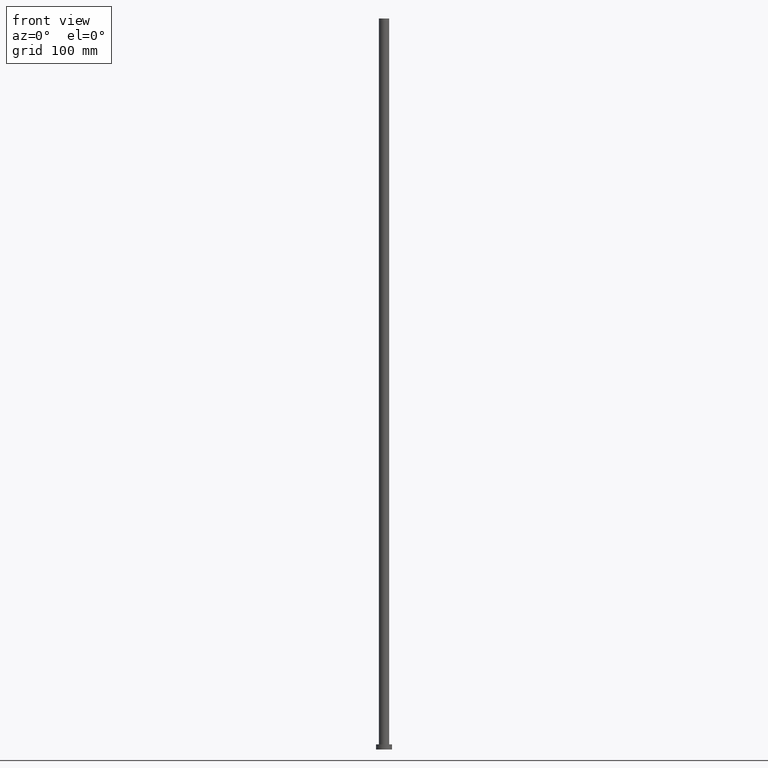
[diagram: clean part render]
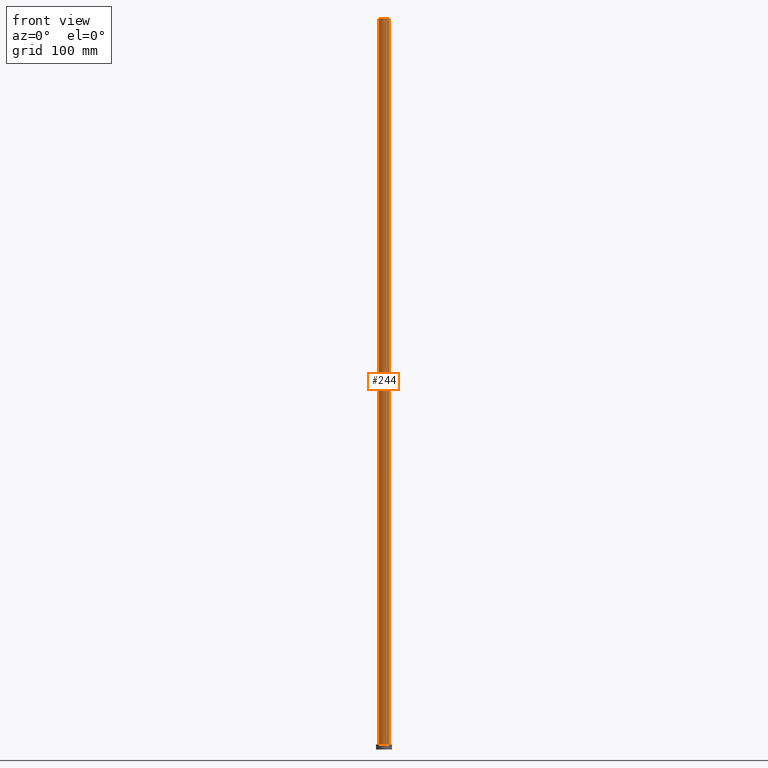
[diagram: same view with one face highlighted and labeled with its STEP entity id]
A machine part, front view. The second image highlights one B-rep face of the part: STEP entity #244.
In plain terms, the highlighted cylindrical surface (edge-blend (fillet) strip) has radius 7 mm, axis along (-0, -0, -1).
Its self-contained STEP definition (entity closure, byte-faithful):
#2 = DIRECTION ( 'NONE',  ( -0.000000000000000000, -0.000000000000000000, -1.000000000000000000 ) ) ;
#11 = ORIENTED_EDGE ( 'NONE', *, *, #100, .T. ) ;
#15 = DIRECTION ( 'NONE',  ( 1.000000000000000000, 0.000000000000000000, 0.000000000000000000 ) ) ;
#17 = DIRECTION ( 'NONE',  ( -0.000000000000000000, -0.000000000000000000, -1.000000000000000000 ) ) ;
#19 = CIRCLE ( 'NONE', #216, 7.000000000000000888 ) ;
#20 = DIRECTION ( 'NONE',  ( 1.000000000000000000, 0.000000000000000000, 0.000000000000000000 ) ) ;
#26 = EDGE_CURVE ( 'NONE', #94, #116, #90, .T. ) ;
#33 = ORIENTED_EDGE ( 'NONE', *, *, #242, .F. ) ;
#50 = ORIENTED_EDGE ( 'NONE', *, *, #203, .F. ) ;
#59 = CARTESIAN_POINT ( 'NONE',  ( 0.000000000000000000, 0.000000000000000000, 1000.000000000000000 ) ) ;
#60 = CARTESIAN_POINT ( 'NONE',  ( 0.000000000000000000, 0.000000000000000000, 7.000000000000000000 ) ) ;
#62 = CYLINDRICAL_SURFACE ( 'NONE', #156, 7.000000000000000888 ) ;
#69 = VECTOR ( 'NONE', #2, 1000.000000000000000 ) ;
#82 = DIRECTION ( 'NONE',  ( -0.000000000000000000, -0.000000000000000000, -1.000000000000000000 ) ) ;
#85 = DIRECTION ( 'NONE',  ( 0.000000000000000000, 0.000000000000000000, 1.000000000000000000 ) ) ;
#90 = CIRCLE ( 'NONE', #129, 7.000000000000000888 ) ;
#94 = VERTEX_POINT ( 'NONE', #239 ) ;
#98 = EDGE_LOOP ( 'NONE', ( #50, #33, #11, #117 ) ) ;
#100 = EDGE_CURVE ( 'NONE', #185, #94, #122, .T. ) ;
#104 = DIRECTION ( 'NONE',  ( -1.000000000000000000, 0.000000000000000000, 0.000000000000000000 ) ) ;
#116 = VERTEX_POINT ( 'NONE', #237 ) ;
#117 = ORIENTED_EDGE ( 'NONE', *, *, #26, .T. ) ;
#122 = LINE ( 'NONE', #179, #69 ) ;
#123 = DIRECTION ( 'NONE',  ( 0.000000000000000000, 0.000000000000000000, 1.000000000000000000 ) ) ;
#129 = AXIS2_PLACEMENT_3D ( 'NONE', #60, #85, #20 ) ;
#135 = CARTESIAN_POINT ( 'NONE',  ( 0.000000000000000000, 0.000000000000000000, 1000.000000000000000 ) ) ;
#156 = AXIS2_PLACEMENT_3D ( 'NONE', #135, #17, #104 ) ;
#159 = CARTESIAN_POINT ( 'NONE',  ( 7.000000000000000888, 8.572527594031474176E-16, 1000.000000000000000 ) ) ;
#164 = CARTESIAN_POINT ( 'NONE',  ( -7.000000000000000888, 0.000000000000000000, 1000.000000000000000 ) ) ;
#179 = CARTESIAN_POINT ( 'NONE',  ( -7.000000000000000888, 0.000000000000000000, 1000.000000000000000 ) ) ;
#185 = VERTEX_POINT ( 'NONE', #164 ) ;
#188 = VERTEX_POINT ( 'NONE', #159 ) ;
#191 = LINE ( 'NONE', #252, #231 ) ;
#197 = FACE_OUTER_BOUND ( 'NONE', #98, .T. ) ;
#203 = EDGE_CURVE ( 'NONE', #188, #116, #191, .T. ) ;
#216 = AXIS2_PLACEMENT_3D ( 'NONE', #59, #123, #15 ) ;
#231 = VECTOR ( 'NONE', #82, 1000.000000000000000 ) ;
#237 = CARTESIAN_POINT ( 'NONE',  ( 7.000000000000000888, 8.572527594031474176E-16, 7.000000000000000000 ) ) ;
#239 = CARTESIAN_POINT ( 'NONE',  ( -7.000000000000000888, 0.000000000000000000, 7.000000000000000000 ) ) ;
#242 = EDGE_CURVE ( 'NONE', #185, #188, #19, .T. ) ;
#244 = ADVANCED_FACE ( 'NONE', ( #197 ), #62, .T. ) ;
#252 = CARTESIAN_POINT ( 'NONE',  ( 7.000000000000000888, 8.572527594031474176E-16, 1000.000000000000000 ) ) ;